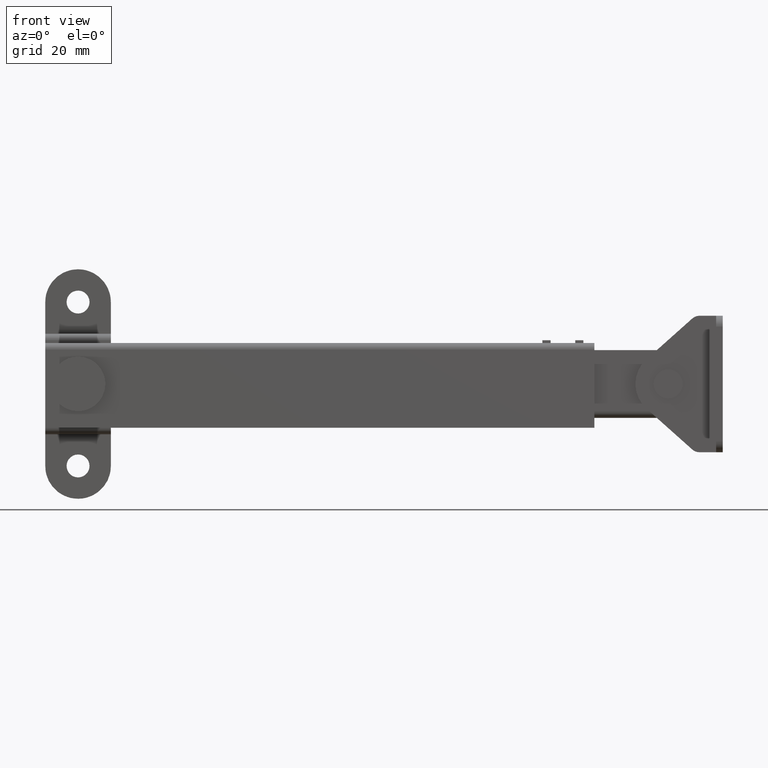
[diagram: clean part render]
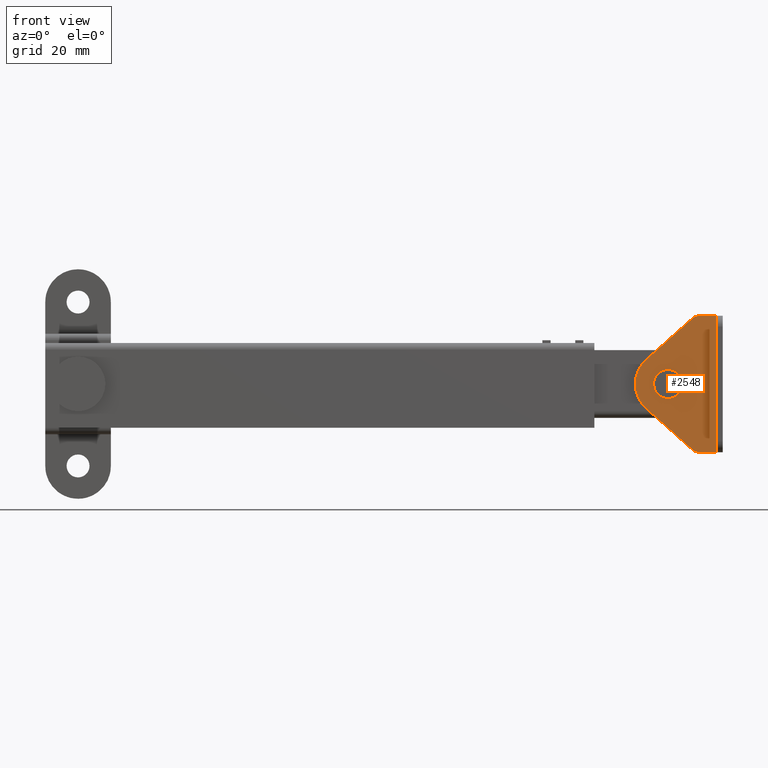
[diagram: same view with one face highlighted and labeled with its STEP entity id]
A machine part, front view. The second image highlights one B-rep face of the part: STEP entity #2548.
In plain terms, the highlighted face is a freeform B-spline surface patch.
Its self-contained STEP definition (entity closure, byte-faithful):
#1905=CARTESIAN_POINT('',(107.999999999974410,-16.000000000187999,-2.549999999999827));
#1906=VERTEX_POINT('',#1905);
#1907=CARTESIAN_POINT('',(109.722755170002000,-16.000000000187178,-1.880057103065971));
#1908=VERTEX_POINT('',#1907);
#1909=CARTESIAN_POINT('',(107.999999999974410,-16.000000000187999,-2.549999999999827));
#1910=CARTESIAN_POINT('',(108.256153239335110,-16.000000000187860,-2.550098340051386));
#1911=CARTESIAN_POINT('',(108.709269186656000,-16.000000000187718,-2.481154064439623));
#1912=CARTESIAN_POINT('',(109.289536650559100,-16.000000000187349,-2.223868222209289));
#1913=CARTESIAN_POINT('',(109.592028573327100,-16.000000000187249,-1.999875937605270));
#1914=CARTESIAN_POINT('',(109.722755170002000,-16.000000000187178,-1.880057103065971));
#1915=B_SPLINE_CURVE_WITH_KNOTS('',3,(#1909,#1910,#1911,#1912,#1913,#1914),.UNSPECIFIED.,.F.,.U.,(4,1,1,4),(0.000000048006064,0.768454162202184,1.359543611422812,1.891543096858568),.UNSPECIFIED.);
#1916=EDGE_CURVE('',#1906,#1908,#1915,.T.);
#1961=CARTESIAN_POINT('',(106.277244829946800,-16.000000000187178,1.880057103066316));
#1962=VERTEX_POINT('',#1961);
#1968=CARTESIAN_POINT('',(105.449999999952300,-16.000000000187949,0.000000068217563));
#1969=VERTEX_POINT('',#1968);
#1970=CARTESIAN_POINT('',(106.277244829946800,-16.000000000187178,1.880057103066316));
#1971=CARTESIAN_POINT('',(106.131092307201900,-16.000000000187178,1.746190253064910));
#1972=CARTESIAN_POINT('',(105.884780887922900,-16.000000000187399,1.460917452986936));
#1973=CARTESIAN_POINT('',(105.549857351142610,-16.000000000187619,0.836581520245138));
#1974=CARTESIAN_POINT('',(105.449637678469500,-16.000000000187779,0.330388652981498));
#1975=CARTESIAN_POINT('',(105.449999999952300,-16.000000000187949,0.000000068217563));
#1976=B_SPLINE_CURVE_WITH_KNOTS('',3,(#1970,#1971,#1972,#1973,#1974,#1975),.UNSPECIFIED.,.F.,.U.,(4,1,1,4),(0.000000058246503,0.594588734267957,1.123098685619268,2.114088925546258),.UNSPECIFIED.);
#1977=EDGE_CURVE('',#1962,#1969,#1976,.T.);
#1979=CARTESIAN_POINT('',(105.449999999952300,-16.000000000187949,0.000000068217563));
#1980=CARTESIAN_POINT('',(105.449848889654900,-16.000000000187971,-0.271230098906714));
#1981=CARTESIAN_POINT('',(105.517223425811810,-16.000000000187960,-0.688362705137850));
#1982=CARTESIAN_POINT('',(105.756503336282900,-16.000000000187960,-1.246508106866447));
#1983=CARTESIAN_POINT('',(106.041486970033300,-16.000000000187971,-1.661877458217175));
#1984=CARTESIAN_POINT('',(106.481748967897700,-16.000000000187981,-2.081116468941847));
#1985=CARTESIAN_POINT('',(107.123905372921200,-16.000000000187889,-2.445003875379640));
#1986=CARTESIAN_POINT('',(107.687048907831000,-16.000000000188081,-2.550255647978056));
#1987=CARTESIAN_POINT('',(107.999999999974410,-16.000000000187999,-2.549999999999827));
#1988=B_SPLINE_CURVE_WITH_KNOTS('',3,(#1979,#1980,#1981,#1982,#1983,#1984,#1985,#1986,#1987),.UNSPECIFIED.,.F.,.U.,(4,1,1,1,1,1,4),(0.000000178147159,0.813636677465474,1.251772910783064,1.815090505696188,2.315726410862456,3.066814922008777,4.005631186529186),.UNSPECIFIED.);
#1989=EDGE_CURVE('',#1969,#1906,#1988,.T.);
#2012=CARTESIAN_POINT('',(110.549999999952310,-16.000000000187949,-0.000000068217289));
#2013=VERTEX_POINT('',#2012);
#2014=CARTESIAN_POINT('',(109.722755170002000,-16.000000000187178,-1.880057103065971));
#2015=CARTESIAN_POINT('',(109.966586561683500,-16.000000000187281,-1.657116708945478));
#2016=CARTESIAN_POINT('',(110.272086330877300,-16.000000000187491,-1.241248573950752));
#2017=CARTESIAN_POINT('',(110.506121590194500,-16.000000000187612,-0.572521175076956));
#2018=CARTESIAN_POINT('',(110.550042906899410,-16.000000000187931,-0.198195684368675));
#2019=CARTESIAN_POINT('',(110.549999999952310,-16.000000000187949,-0.000000068217289));
#2020=B_SPLINE_CURVE_WITH_KNOTS('',3,(#2014,#2015,#2016,#2017,#2018,#2019),.UNSPECIFIED.,.F.,.U.,(4,1,1,4),(0.000000058247124,0.990990298163863,1.519500249513142,2.114088925527809),.UNSPECIFIED.);
#2021=EDGE_CURVE('',#1908,#2013,#2020,.T.);
#2023=CARTESIAN_POINT('',(107.999999999974410,-16.000000000187999,2.550000000000173));
#2024=VERTEX_POINT('',#2023);
#2025=CARTESIAN_POINT('',(110.549999999952310,-16.000000000187949,-0.000000068217289));
#2026=CARTESIAN_POINT('',(110.550160257781400,-16.000000000187921,0.271224797499256));
#2027=CARTESIAN_POINT('',(110.476052245958200,-16.000000000187988,0.730097893867468));
#2028=CARTESIAN_POINT('',(110.222533290634900,-16.000000000187931,1.283509779139451));
#2029=CARTESIAN_POINT('',(109.928137086072790,-16.000000000187999,1.690785153820667));
#2030=CARTESIAN_POINT('',(109.578953748033100,-16.000000000187939,2.023249684717674));
#2031=CARTESIAN_POINT('',(109.153907626271800,-16.000000000187988,2.292407944251598));
#2032=CARTESIAN_POINT('',(108.625820112833300,-16.000000000187981,2.496108909143656));
#2033=CARTESIAN_POINT('',(108.229489665896390,-16.000000000188031,2.550084848378131));
#2034=CARTESIAN_POINT('',(107.999999999974410,-16.000000000187999,2.550000000000173));
#2035=B_SPLINE_CURVE_WITH_KNOTS('',3,(#2025,#2026,#2027,#2028,#2029,#2030,#2031,#2032,#2033,#2034),.UNSPECIFIED.,.F.,.U.,(4,1,1,1,1,1,1,4),(0.000000178151351,0.813636677461154,1.376954828922237,1.815090505681723,2.315726410843264,2.816459341101638,3.317178163259801,4.005631186494518),.UNSPECIFIED.);
#2036=EDGE_CURVE('',#2013,#2024,#2035,.T.);
#2038=CARTESIAN_POINT('',(107.999999999974410,-16.000000000187999,2.550000000000173));
#2039=CARTESIAN_POINT('',(107.783261109817100,-16.000000000187899,2.550054932218481));
#2040=CARTESIAN_POINT('',(107.408935640360890,-16.000000000187718,2.501978881182902));
#2041=CARTESIAN_POINT('',(106.813603990431010,-16.000000000187441,2.286216049262114));
#2042=CARTESIAN_POINT('',(106.466020529223400,-16.000000000187271,2.053215576892893));
#2043=CARTESIAN_POINT('',(106.277244829946800,-16.000000000187178,1.880057103066316));
#2044=B_SPLINE_CURVE_WITH_KNOTS('',3,(#2038,#2039,#2040,#2041,#2042,#2043),.UNSPECIFIED.,.F.,.U.,(4,1,1,4),(0.000000048009699,0.650220038541155,1.123088982661402,1.891543096858570),.UNSPECIFIED.);
#2045=EDGE_CURVE('',#2024,#1962,#2044,.T.);
#2462=CARTESIAN_POINT('',(101.260694736891200,-16.000000000187899,-13.748749951545159));
#2463=CARTESIAN_POINT('',(101.260694736891200,-16.000000000187899,13.748750622097720));
#2464=CARTESIAN_POINT('',(117.539262522914900,-16.000000000187899,-13.748749951545159));
#2465=CARTESIAN_POINT('',(117.539262522914900,-16.000000000187899,13.748750622097720));
#2466=B_SPLINE_SURFACE_WITH_KNOTS('',1,1,((#2462,#2464),(#2463,#2465)),.UNSPECIFIED.,.F.,.F.,.U.,(2,2),(2,2),(0.0,27.497500573642881),(0.0,16.278567786023739),.UNSPECIFIED.);
#2467=CARTESIAN_POINT('',(112.431068904556400,-16.000000000187999,-11.992522526520940));
#2468=VERTEX_POINT('',#2467);
#2469=CARTESIAN_POINT('',(104.006081051066200,-16.000000000187999,-4.477567579562705));
#2470=VERTEX_POINT('',#2469);
#2471=CARTESIAN_POINT('',(112.431068904556400,-16.000000000187999,-11.992522526520940));
#2472=CARTESIAN_POINT('',(104.006081051066200,-16.000000000187999,-4.477567579562705));
#2473=QUASI_UNIFORM_CURVE('',1,(#2471,#2472),.UNSPECIFIED.,.F.,.U.);
#2474=EDGE_CURVE('',#2468,#2470,#2473,.T.);
#2475=ORIENTED_EDGE('',*,*,#2474,.F.);
#2476=CARTESIAN_POINT('',(113.762375220859000,-16.000000000187899,-12.500000000000000));
#2477=VERTEX_POINT('',#2476);
#2478=CARTESIAN_POINT('',(112.431068904556400,-16.000000000187999,-11.992522526520940));
#2479=CARTESIAN_POINT('',(112.623416898660200,-16.000000000187921,-12.164472307239841));
#2480=CARTESIAN_POINT('',(113.049281753505800,-16.000000000187921,-12.416148652644949));
#2481=CARTESIAN_POINT('',(113.534733589209000,-16.000000000187882,-12.500155173386821));
#2482=CARTESIAN_POINT('',(113.762375220859000,-16.000000000187899,-12.500000000000000));
#2483=B_SPLINE_CURVE_WITH_KNOTS('',3,(#2478,#2479,#2480,#2481,#2482),.UNSPECIFIED.,.F.,.U.,(4,1,4),(0.000000060297319,0.773889426386097,1.456768874760253),.UNSPECIFIED.);
#2484=EDGE_CURVE('',#2468,#2477,#2483,.T.);
#2485=ORIENTED_EDGE('',*,*,#2484,.T.);
#2486=CARTESIAN_POINT('',(116.799999999938190,-16.000000000187899,-12.500000000000000));
#2487=VERTEX_POINT('',#2486);
#2488=CARTESIAN_POINT('',(116.799999999938190,-16.000000000187899,-12.500000000000000));
#2489=CARTESIAN_POINT('',(113.762375220859000,-16.000000000187899,-12.500000000000000));
#2490=QUASI_UNIFORM_CURVE('',1,(#2488,#2489),.UNSPECIFIED.,.F.,.U.);
#2491=EDGE_CURVE('',#2487,#2477,#2490,.T.);
#2492=ORIENTED_EDGE('',*,*,#2491,.F.);
#2493=CARTESIAN_POINT('',(116.799999999938190,-16.000000000187899,12.500000000000300));
#2494=VERTEX_POINT('',#2493);
#2495=CARTESIAN_POINT('',(116.799999999938190,-16.000000000187899,-12.500000000000000));
#2496=CARTESIAN_POINT('',(116.799999999938190,-16.000000000187899,12.500000000000300));
#2497=QUASI_UNIFORM_CURVE('',1,(#2495,#2496),.UNSPECIFIED.,.F.,.U.);
#2498=EDGE_CURVE('',#2487,#2494,#2497,.T.);
#2499=ORIENTED_EDGE('',*,*,#2498,.T.);
#2500=CARTESIAN_POINT('',(113.762375220858000,-16.000000000187899,12.500000000000220));
#2501=VERTEX_POINT('',#2500);
#2502=CARTESIAN_POINT('',(116.799999999938190,-16.000000000187899,12.500000000000300));
#2503=CARTESIAN_POINT('',(113.762375220858000,-16.000000000187899,12.500000000000220));
#2504=QUASI_UNIFORM_CURVE('',1,(#2502,#2503),.UNSPECIFIED.,.F.,.U.);
#2505=EDGE_CURVE('',#2494,#2501,#2504,.T.);
#2506=ORIENTED_EDGE('',*,*,#2505,.T.);
#2507=CARTESIAN_POINT('',(112.431068904555200,-16.000000000187999,11.992522526521100));
#2508=VERTEX_POINT('',#2507);
#2509=CARTESIAN_POINT('',(113.762375220858000,-16.000000000187899,12.500000000000220));
#2510=CARTESIAN_POINT('',(113.534735456542710,-16.000000000187988,12.500151165632920));
#2511=CARTESIAN_POINT('',(113.049274272879400,-16.000000000187921,12.416164893805799));
#2512=CARTESIAN_POINT('',(112.623426332180500,-16.000000000188059,12.164456798479449));
#2513=CARTESIAN_POINT('',(112.431068904555200,-16.000000000187999,11.992522526521100));
#2514=B_SPLINE_CURVE_WITH_KNOTS('',3,(#2509,#2510,#2511,#2512,#2513),.UNSPECIFIED.,.F.,.U.,(4,1,4),(0.000000060298900,0.682879508671527,1.456768874760465),.UNSPECIFIED.);
#2515=EDGE_CURVE('',#2501,#2508,#2514,.T.);
#2516=ORIENTED_EDGE('',*,*,#2515,.T.);
#2517=CARTESIAN_POINT('',(104.006081051066000,-16.000000000187999,4.477567579562700));
#2518=VERTEX_POINT('',#2517);
#2519=CARTESIAN_POINT('',(104.006081051066000,-16.000000000187999,4.477567579562700));
#2520=CARTESIAN_POINT('',(112.431068904555200,-16.000000000187999,11.992522526521100));
#2521=QUASI_UNIFORM_CURVE('',1,(#2519,#2520),.UNSPECIFIED.,.F.,.U.);
#2522=EDGE_CURVE('',#2518,#2508,#2521,.T.);
#2523=ORIENTED_EDGE('',*,*,#2522,.F.);
#2524=CARTESIAN_POINT('',(104.006081051066000,-16.000000000187999,4.477567579562700));
#2525=CARTESIAN_POINT('',(103.652387596095810,-16.000000000187971,4.162207093356397));
#2526=CARTESIAN_POINT('',(103.020356800251090,-16.000000000188070,3.447087181038368));
#2527=CARTESIAN_POINT('',(102.300529738769700,-16.000000000187949,2.088293006013664));
#2528=CARTESIAN_POINT('',(101.993557261063000,-16.000000000188020,0.739460147922081));
#2529=CARTESIAN_POINT('',(101.993817612295900,-16.000000000187999,-0.448934207858429));
#2530=CARTESIAN_POINT('',(102.137069673338600,-16.000000000188020,-1.388271798294916));
#2531=CARTESIAN_POINT('',(102.466778303532190,-16.000000000187860,-2.420222631831946));
#2532=CARTESIAN_POINT('',(103.071109993668100,-16.000000000188368,-3.508811089600353));
#2533=CARTESIAN_POINT('',(103.672058840913710,-16.000000000187740,-4.179715747441740));
#2534=CARTESIAN_POINT('',(104.006081051066200,-16.000000000187999,-4.477567579562705));
#2535=B_SPLINE_CURVE_WITH_KNOTS('',3,(#2524,#2525,#2526,#2527,#2528,#2529,#2530,#2531,#2532,#2533,#2534),.UNSPECIFIED.,.F.,.U.,(4,1,1,1,1,1,1,1,4),(0.000000185554605,1.421594932881250,2.843217281608347,4.580755165044139,5.528450677189509,6.397201759160313,7.423944975751279,8.766604762118767,10.109204289658210),.UNSPECIFIED.);
#2536=EDGE_CURVE('',#2518,#2470,#2535,.T.);
#2537=ORIENTED_EDGE('',*,*,#2536,.T.);
#2538=EDGE_LOOP('',(#2475,#2485,#2492,#2499,#2506,#2516,#2523,#2537));
#2539=FACE_OUTER_BOUND('',#2538,.T.);
#2540=ORIENTED_EDGE('',*,*,#2036,.F.);
#2541=ORIENTED_EDGE('',*,*,#2021,.F.);
#2542=ORIENTED_EDGE('',*,*,#1916,.F.);
#2543=ORIENTED_EDGE('',*,*,#1989,.F.);
#2544=ORIENTED_EDGE('',*,*,#1977,.F.);
#2545=ORIENTED_EDGE('',*,*,#2045,.F.);
#2546=EDGE_LOOP('',(#2540,#2541,#2542,#2543,#2544,#2545));
#2547=FACE_BOUND('',#2546,.T.);
#2548=ADVANCED_FACE('',(#2539,#2547),#2466,.F.);